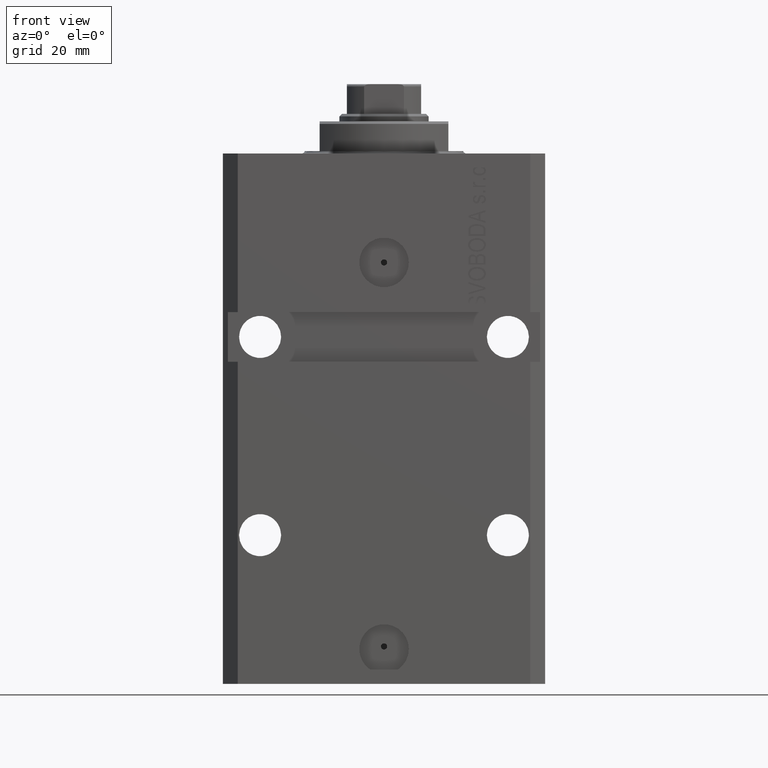
[diagram: clean part render]
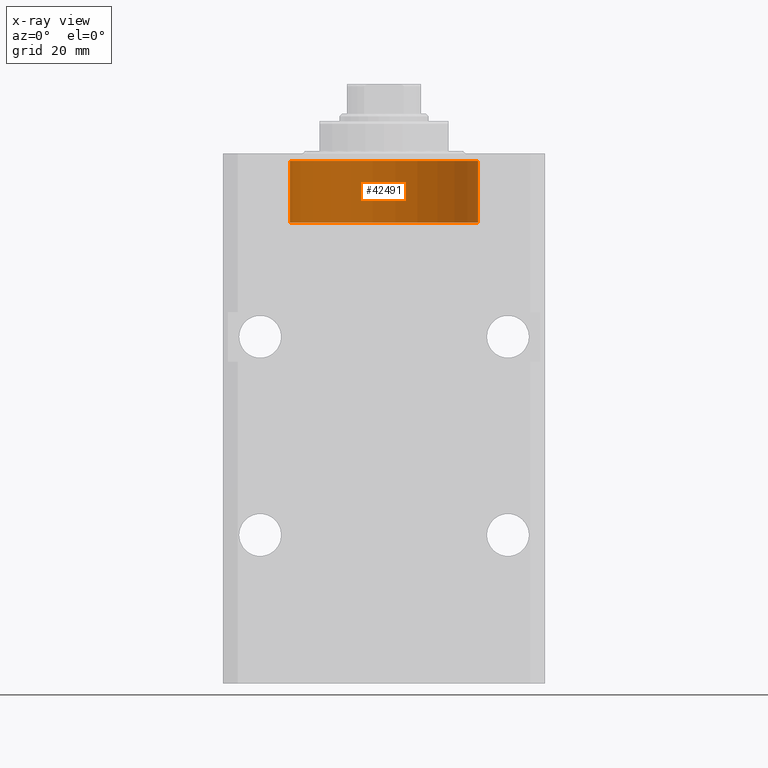
[diagram: x-ray — body ghosted, one internal face saturated and labeled with its STEP entity id]
A machine part, front view, then the same camera in x-ray: the body is ghosted and one INTERNAL B-rep face — a face not visible from any outside direction — is saturated and labeled: STEP entity #42491.
In plain terms, the highlighted cylindrical surface (partial cylindrical patch) has radius 19 mm, axis along (0, -0, 1).
Its self-contained STEP definition (entity closure, byte-faithful):
#916 = DIRECTION ( 'NONE',  ( -0.000000000000000000, -0.000000000000000000, -1.000000000000000000 ) ) ;
#2865 = LINE ( 'NONE', #3362, #15502 ) ;
#3362 = CARTESIAN_POINT ( 'NONE',  ( -19.00000000000000000, 0.000000000000000000, 14.00000000000000000 ) ) ;
#4518 = ORIENTED_EDGE ( 'NONE', *, *, #38448, .F. ) ;
#5561 = DIRECTION ( 'NONE',  ( 0.000000000000000000, 0.000000000000000000, 1.000000000000000000 ) ) ;
#6310 = CARTESIAN_POINT ( 'NONE',  ( -19.00000000000000000, 0.000000000000000000, 1.500000000000004885 ) ) ;
#9134 = CYLINDRICAL_SURFACE ( 'NONE', #42876, 19.00000000000000000 ) ;
#11091 = EDGE_CURVE ( 'NONE', #35498, #17623, #28286, .T. ) ;
#13132 = VERTEX_POINT ( 'NONE', #28210 ) ;
#15502 = VECTOR ( 'NONE', #28983, 1000.000000000000000 ) ;
#16038 = LINE ( 'NONE', #44820, #41935 ) ;
#16197 = CIRCLE ( 'NONE', #16949, 19.00000000000000000 ) ;
#16949 = AXIS2_PLACEMENT_3D ( 'NONE', #19258, #30737, #44625 ) ;
#17623 = VERTEX_POINT ( 'NONE', #26162 ) ;
#19258 = CARTESIAN_POINT ( 'NONE',  ( 0.000000000000000000, 0.000000000000000000, 1.500000000000004885 ) ) ;
#20597 = DIRECTION ( 'NONE',  ( -1.000000000000000000, 0.000000000000000000, 0.000000000000000000 ) ) ;
#21335 = FACE_OUTER_BOUND ( 'NONE', #38436, .T. ) ;
#22840 = AXIS2_PLACEMENT_3D ( 'NONE', #31661, #5561, #35820 ) ;
#24502 = DIRECTION ( 'NONE',  ( -0.000000000000000000, -0.000000000000000000, -1.000000000000000000 ) ) ;
#26162 = CARTESIAN_POINT ( 'NONE',  ( -19.00000000000000000, 0.000000000000000000, 14.00000000000000000 ) ) ;
#28210 = CARTESIAN_POINT ( 'NONE',  ( 19.00000000000000000, 2.326828918379970970E-15, 1.500000000000004885 ) ) ;
#28286 = CIRCLE ( 'NONE', #22840, 19.00000000000000000 ) ;
#28654 = CARTESIAN_POINT ( 'NONE',  ( 0.000000000000000000, 0.000000000000000000, 14.00000000000000000 ) ) ;
#28894 = ORIENTED_EDGE ( 'NONE', *, *, #11091, .F. ) ;
#28983 = DIRECTION ( 'NONE',  ( -0.000000000000000000, -0.000000000000000000, -1.000000000000000000 ) ) ;
#30737 = DIRECTION ( 'NONE',  ( -0.000000000000000000, -0.000000000000000000, 1.000000000000000000 ) ) ;
#31661 = CARTESIAN_POINT ( 'NONE',  ( 0.000000000000000000, 0.000000000000000000, 14.00000000000000000 ) ) ;
#32059 = EDGE_CURVE ( 'NONE', #13132, #32435, #16197, .T. ) ;
#32435 = VERTEX_POINT ( 'NONE', #6310 ) ;
#33440 = EDGE_CURVE ( 'NONE', #35498, #13132, #16038, .T. ) ;
#35498 = VERTEX_POINT ( 'NONE', #44809 ) ;
#35820 = DIRECTION ( 'NONE',  ( 1.000000000000000000, 0.000000000000000000, 0.000000000000000000 ) ) ;
#38436 = EDGE_LOOP ( 'NONE', ( #28894, #41994, #40751, #4518 ) ) ;
#38448 = EDGE_CURVE ( 'NONE', #17623, #32435, #2865, .T. ) ;
#40751 = ORIENTED_EDGE ( 'NONE', *, *, #32059, .T. ) ;
#41935 = VECTOR ( 'NONE', #916, 1000.000000000000000 ) ;
#41994 = ORIENTED_EDGE ( 'NONE', *, *, #33440, .T. ) ;
#42491 = ADVANCED_FACE ( 'NONE', ( #21335 ), #9134, .T. ) ;
#42876 = AXIS2_PLACEMENT_3D ( 'NONE', #28654, #24502, #20597 ) ;
#44625 = DIRECTION ( 'NONE',  ( 1.000000000000000000, 0.000000000000000000, 0.000000000000000000 ) ) ;
#44809 = CARTESIAN_POINT ( 'NONE',  ( 19.00000000000000000, 2.326828918379970970E-15, 14.00000000000000000 ) ) ;
#44820 = CARTESIAN_POINT ( 'NONE',  ( 19.00000000000000000, 2.326828918379970970E-15, 14.00000000000000000 ) ) ;